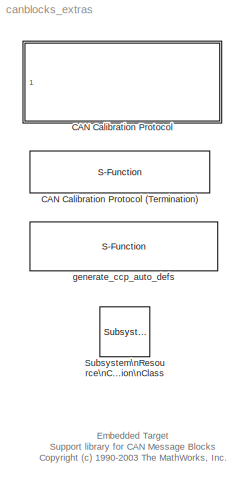
MODEL canblocks_extras
KIND library
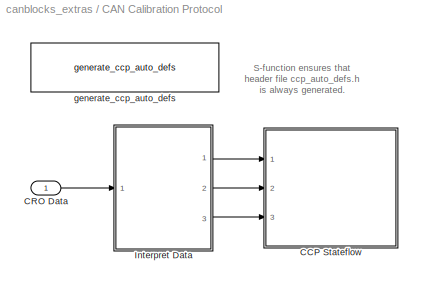
BLOCK [SubSystem] CAN Calibration Protocol
  AttributesFormatString = \\n\\n
  MaskCallbackString = ||ccp_init_mask('show_commands_mask_callback',gcb);||||||||||||||
  MaskDescription = Implements a subset of the CAN Calibration Protocol (CCP v2.1) on the target processor.\n\nThis block processes a Command Receive Object (CRO) and outputs the resulting Data Transmission Object (DTO).
  MaskDisplay = disp('CCP Kernel');\n\nport_label('input',1, 'CRO Data');
  MaskEnableString = on,on,on,on,on,on,on,on,on,on,on,on,on,on,on,on,on
  MaskHelp = helpview([docroot '/toolbox/can_blocks/can_blocks.map'], 'target_CCP');
  MaskIconFrame = on
  MaskIconOpaque = on
  MaskIconRotate = none
  MaskIconUnits = autoscale
  MaskInitialization = %% update the total_num_odts variable shared\n%% between all signal objects\nif isnumeric(TOTAL_NUM_ODTS) && ~isempty(TOTAL_NUM_ODTS)\n	tempVar = canlib.Signal;\n	tempVar.Configuration.total_num_odts = TOTAL_NUM_ODTS;\nend;\n\n% resource config - make sure\n% only a single CCP block is in each\n% target subsystem\nmask_resource_validator(gcb,@canblocks_ccp_validate, 'CCP_BLOCK');\n
  MaskPromptString = CAN station address (16-bit integer):|Total Number of ODTs|Enable / Disable Connected State Commands|GET_CCP_VERSION|EXCHANGE_ID|SET_MTA|DNLOAD|DNLOAD_6|UPLOAD|SHORT_UP|GET_DAQ_SIZE|SET_DAQ_PTR|WRITE_DAQ|START_STOP|SET_S_STATUS|GET_S_STATUS|START_STOP_ALL
  MaskSelfModifiable = on
  MaskStyleString = edit,edit,checkbox,checkbox,checkbox,checkbox,checkbox,checkbox,checkbox,checkbox,checkbox,checkbox,checkbox,checkbox,checkbox,checkbox,checkbox
  MaskTabNameString = ,,,,,,,,,,,,,,,,
  MaskToolTipString = on,on,on,on,on,on,on,on,on,on,on,on,on,on,on,on,on
  MaskTunableValueString = off,off,off,off,off,off,off,off,off,off,off,off,off,off,off,off,on
  MaskType = CAN Calibration Protocol (Target-side)
  MaskValueString = CCP_STATION_ID|TOTAL_NUM_ODTS|off|on|on|on|on|on|on|on|on|on|on|on|on|on|on
  MaskVarAliasString = ,,,,,,,,,,,,,,,,
  MaskVariables = CCP_STATION_ID=@1;TOTAL_NUM_ODTS=@2;show_commands=@3;GET_CCP_VERSIONenabled=@4;EXCHANGE_IDenabled=@5;SET_MTAenabled=@6;DNLOADenabled=@7;DNLOAD_6enabled=@8;UPLOADenabled=@9;SHORT_UPenabled=@10;GET_DAQ_SIZEenabled=@11;SET_DAQ_PTRenabled=@12;WRITE_DAQenabled=@13;START_STOPenabled=@14;SET_S_STATUSenabled=@15;GET_S_STATUSenabled=@16;START_STOP_ALLenabled=@17;
  MaskVisibilityString = on,on,on,off,off,off,off,off,off,off,off,off,off,off,off,off,off
  MinAlgLoopOccurrences = off
  Ports = [1]
  PropExecContextAcrossSSBoundary = on
  RTWSystemCode = Auto
  TreatAsAtomicUnit = off
  UserData = DataTag0
  UserDataPersistent = on
BLOCK [S-Function] CAN Calibration Protocol (Termination)
  FunctionName = sfun_ccp_termination
  MaskDisplay = disp('CCP Termination');
  MaskIconFrame = on
  MaskIconOpaque = on
  MaskIconRotate = none
  MaskIconUnits = autoscale
  Ports = [0, 2]
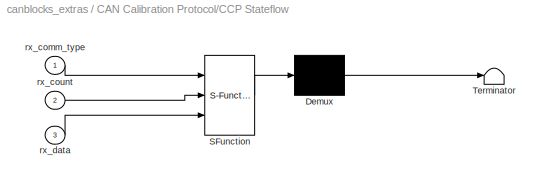
BLOCK [SubSystem] CAN Calibration Protocol/CCP Stateflow 
  MaskDescription = Stateflow diagram
  MaskDisplay = plot(sf('Private','sfblk','xIcon'),sf('Private','sfblk','yIcon'));text(0.5,0,sf('Private', 'sfblk', 'tIcon'),'HorizontalAl','Center','VerticalAl','Bottom');
  MaskIconFrame = off
  MaskIconOpaque = off
  MaskIconRotate = none
  MaskIconUnits = autoscale
  MaskSelfModifiable = on
  MaskType = Stateflow
  MinAlgLoopOccurrences = off
  Ports = [3]
  PropExecContextAcrossSSBoundary = on
  RTWSystemCode = Auto
  TreatAsAtomicUnit = on
BLOCK [Demux] CAN Calibration Protocol/CCP Stateflow / Demux 
  Outputs = 1
  Ports = [1, 1]
BLOCK [S-Function] CAN Calibration Protocol/CCP Stateflow / SFunction 
  FunctionName = sf_sfun
  Parameters = CCP_STATION_ID,DNLOAD_6enabled,DNLOADenabled,EXCHANGE_IDenabled,GET_CCP_VERSIONenabled,GET_DAQ_SIZEenabled,GET_S_STATUSenabled,SET_DAQ_PTRenabled,SET_MTAenabled,SET_S_STATUSenabled,SHORT_UPenabled,START_STOP_ALLenabled,START_STOPenabled,UPLOADenabled,WRITE_DAQenabled
  PortCounts = [3 1]
  Ports = [3, 1]
  Tag = Stateflow S-Function canblocks_extras 28
BLOCK [Terminator] CAN Calibration Protocol/CCP Stateflow / Terminator 
BLOCK [Inport] CAN Calibration Protocol/CCP Stateflow /rx_comm_type
  IconDisplay = Port number
  LatchInput = off
  Port = 1
BLOCK [Inport] CAN Calibration Protocol/CCP Stateflow /rx_count
  IconDisplay = Port number
  LatchInput = off
  Port = 2
BLOCK [Inport] CAN Calibration Protocol/CCP Stateflow /rx_data
  IconDisplay = Port number
  LatchInput = off
  Port = 3
BLOCK [Inport] CAN Calibration Protocol/CRO Data
  IconDisplay = Port number
  LatchInput = off
  Port = 1
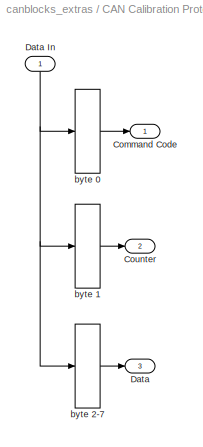
BLOCK [SubSystem] CAN Calibration Protocol/Interpret Data
  MinAlgLoopOccurrences = off
  Ports = [1, 3]
  PropExecContextAcrossSSBoundary = on
  RTWSystemCode = Auto
  TreatAsAtomicUnit = off
BLOCK [Outport] CAN Calibration Protocol/Interpret Data/Command Code
  BusOutputAsStruct = off
  IconDisplay = Port number
BLOCK [Outport] CAN Calibration Protocol/Interpret Data/Counter
  BusOutputAsStruct = off
  IconDisplay = Port number
  Port = 2
BLOCK [Outport] CAN Calibration Protocol/Interpret Data/Data
  BusOutputAsStruct = off
  IconDisplay = Port number
  Port = 3
BLOCK [Inport] CAN Calibration Protocol/Interpret Data/Data In
  IconDisplay = Port number
  LatchInput = off
  Port = 1
BLOCK [Selector] CAN Calibration Protocol/Interpret Data/byte 0
  InputPortWidth = 8
  Ports = [1, 1]
BLOCK [Selector] CAN Calibration Protocol/Interpret Data/byte 1
  Elements = 2
  InputPortWidth = 8
  Ports = [1, 1]
BLOCK [Selector] CAN Calibration Protocol/Interpret Data/byte 2-7
  Elements = 3:8
  InputPortWidth = 8
  Ports = [1, 1]
BLOCK [Reference] CAN Calibration Protocol/generate_ccp_auto_defs  REF=canblocks_extras/generate_ccp_auto_defs  (lib defined in mdl_9cd35250e2f5)
  Ports = []
  SourceBlock = canblocks_extras/generate_ccp_auto_defs
  SourceType = Unknown
BLOCK [Reference] Subsystem\nResource\nConfiguration\nClass  REF=config_library/Subsystem\nResource\nConfiguration\nClass
  Ports = []
  ShowPortLabels = on
  SourceBlock = config_library/Subsystem\nResource\nConfiguration\nClass
  SourceType = Subsystem Resource Configuration Class
  Tag = CONFIGURATION DATA CLASS
  dClassName = TargetsCommonConfig.CCP
  rClassName = TargetsCommonConfig.CCP_RESOURCES
BLOCK [S-Function] generate_ccp_auto_defs
  FunctionName = sfun_gen_ccp_auto_defs
  MaskDisplay = disp('Append comment to ccp_auto_defs.h');
  MaskIconFrame = on
  MaskIconOpaque = on
  MaskIconRotate = none
  MaskIconUnits = autoscale
  Ports = []
ANNOTATION (root): Embedded Target\nSupport library for CAN Message Blocks\nCopyright (c) 1990-2003 The MathWorks, Inc.
ANNOTATION CAN Calibration Protocol: S-function ensures that\nheader file ccp_auto_defs.h\nis always generated.
LINE CAN Calibration Protocol/CCP Stateflow / Demux :1 -> CAN Calibration Protocol/CCP Stateflow / Terminator :1
LINE CAN Calibration Protocol/CCP Stateflow / SFunction :1 -> CAN Calibration Protocol/CCP Stateflow / Demux :1
LINE CAN Calibration Protocol/CCP Stateflow /rx_comm_type:1 -> CAN Calibration Protocol/CCP Stateflow / SFunction :1
LINE CAN Calibration Protocol/CCP Stateflow /rx_count:1 -> CAN Calibration Protocol/CCP Stateflow / SFunction :2
LINE CAN Calibration Protocol/CCP Stateflow /rx_data:1 -> CAN Calibration Protocol/CCP Stateflow / SFunction :3
LINE CAN Calibration Protocol/CRO Data:1 -> CAN Calibration Protocol/Interpret Data:1
NET CAN Calibration Protocol/Interpret Data/Data In:1 -> CAN Calibration Protocol/Interpret Data/byte 0:1, CAN Calibration Protocol/Interpret Data/byte 1:1, CAN Calibration Protocol/Interpret Data/byte 2-7:1
LINE CAN Calibration Protocol/Interpret Data/byte 0:1 -> CAN Calibration Protocol/Interpret Data/Command Code:1
LINE CAN Calibration Protocol/Interpret Data/byte 1:1 -> CAN Calibration Protocol/Interpret Data/Counter:1
LINE CAN Calibration Protocol/Interpret Data/byte 2-7:1 -> CAN Calibration Protocol/Interpret Data/Data:1
LINE CAN Calibration Protocol/Interpret Data:1 -> CAN Calibration Protocol/CCP Stateflow :1
LINE CAN Calibration Protocol/Interpret Data:2 -> CAN Calibration Protocol/CCP Stateflow :2
LINE CAN Calibration Protocol/Interpret Data:3 -> CAN Calibration Protocol/CCP Stateflow :3
note: NET lines group one-source signal fan-out (src -> all destinations, sorted); 1:1 wires keep LINE
CHART CAN Calibration Protocol/CCP Stateflow  states=48 transitions=109
  STATE_LABEL 'Exit CONNECTED STATE\\nPermanent Disconnect'
  STATE_LABEL 'tx_dto(tx_comm_type)'
  STATE_LABEL 'Flag to other blocks that this block could deal with the command.'
  STATE_LABEL 'Returns the Slave CCP Version.'
  STATE_LABEL 'No Slave ID implementation +\\nMem. Programming and DAQ available (No Cal) +\\nall are unlocked.'
  STATE_LABEL 'Returns the current mta -\\nusing get_mta()'
  STATE_LABEL 'Returns data read from the target.  From specified address.'
  STATE_LABEL 'Returns data read from the target.  Using MTA.'
  STATE_LABEL '// S_STATUS_QUALIFIER is 0\\nwe do not use additional status info.\\nThe session status info is returned in byte 4.'
  STATE_LABEL 'get_mta0(first_byte)'
  STATE_LABEL 'Copy the MTA (byte by byte) into the output array, dout.\\nNote: This is Endian independant.   The Endianess achieved\\nis that of the processor executing the kernel.'
  STATE_LABEL 'write_daq()'
  STATE_LABEL 'set_mta()'
  STATE_LABEL 'Copy the input array, rx_data (byte by byte) into the the appropriate MTA.\\nNote: This is Endian independant.  The Endianess achieved is that\\nof the processor executing the kernel.'
  STATE_LABEL 'NOTE: rx_data[0] == MTA Number - either 0 or 1.'
  STATE_LABEL 'Exit CONNECTED STATE\\nTemporary Disconnect'
  STATE_LABEL 'When DAQ lists are implemented, perhaps they\\nshould be reset here.'
  STATE_LABEL 'init()'
  STATE_LABEL 'Initialisation of the kernel'
  STATE_LABEL 'unhandled_command()'
  STATE_LABEL 'Disconnected/\\nentry:setCurrent_State(CCP_DISCONNECTED_STATE);\\nentry:c_reset_all_DAQ_lists();'
  STATE_LABEL "2 possible commands when disconnected.  Each command has the station\\naddress as an argument.   Local var. 'station address' is stored in Intel(LE) format."
  STATE_LABEL 'Acknowledge the test.'
  STATE_LABEL 'Master must be communicating with a different\\nSlave.'
  STATE_LABEL 'Not in connected state so any blocks further down the chain will not do anything.'
  STATE_LABEL 'Go into connected state.'
  STATE_LABEL 'NOTE: On entry to this state, all DAQ lists are reset and\\ndata transmission stops.\\nThis is PERMANENT DISCONNECT.\\n\\nNOTE: SET_SESSION_STATUS \\"resume bit\\" is NOT\\nsupported and DAQ related functions are reset.'
  STATE_LABEL 'Temporarily_Disconnected/\\nentry:setCurrent_State(CCP_TEMPORARILY_DISCONNECTED_STATE);'
  STATE_LABEL 'Check station address for test.'
  STATE_LABEL 'Valid connect.'
  STATE_LABEL 'Master must be communicating with a different Slave.'
  STATE_LABEL 'Not in connected state so any blocks further down the chain will not do anything.'
  STATE_LABEL 'NOTE: On entry into this state,\\nall DAQ lists are maintained\\nand data transmission continues.\\nThis is TEMPORARY DISCONNECT.'
  STATE_LABEL 'Connected/\\nentry:setCurrent_State(CCP_CONNECTED_STATE);'
  STATE_LABEL 'For this implementation, we just record\\nthe info. given by the master.'
  STATE_LABEL 'Call set_mta to initialize the appropriate MTA pointer.'
  STATE_LABEL 'Write up to 5 bytes to memory.'
  STATE_LABEL 'Read up to 5 bytes from memory.'
  STATE_LABEL 'Must be an unrecognised command.\\nSet the command as unhandled so\\nblocks further down the chain can\\nhandle it.'
  STATE_LABEL "Clear a DAQ list and find it's size."
